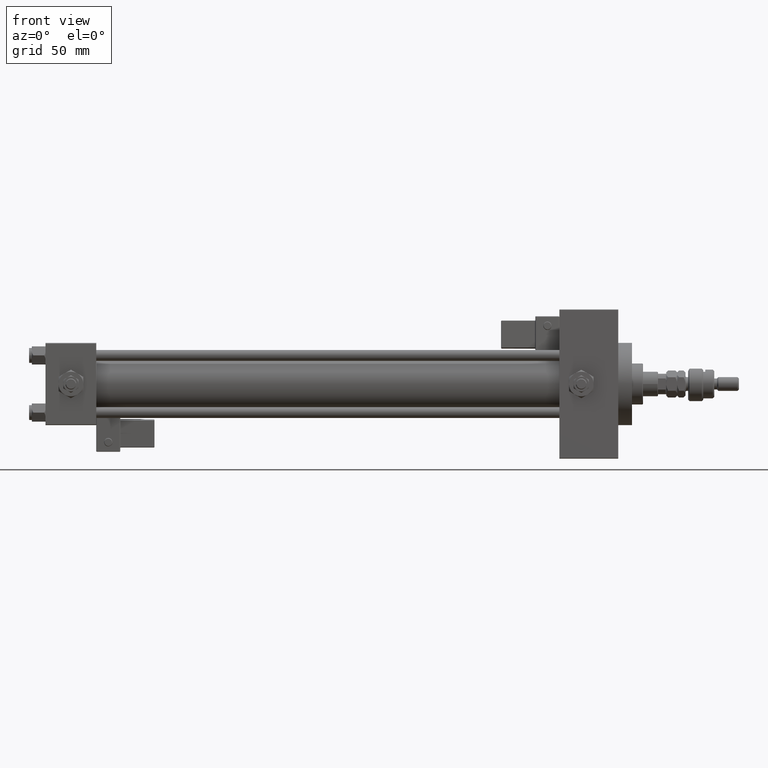
[diagram: clean part render]
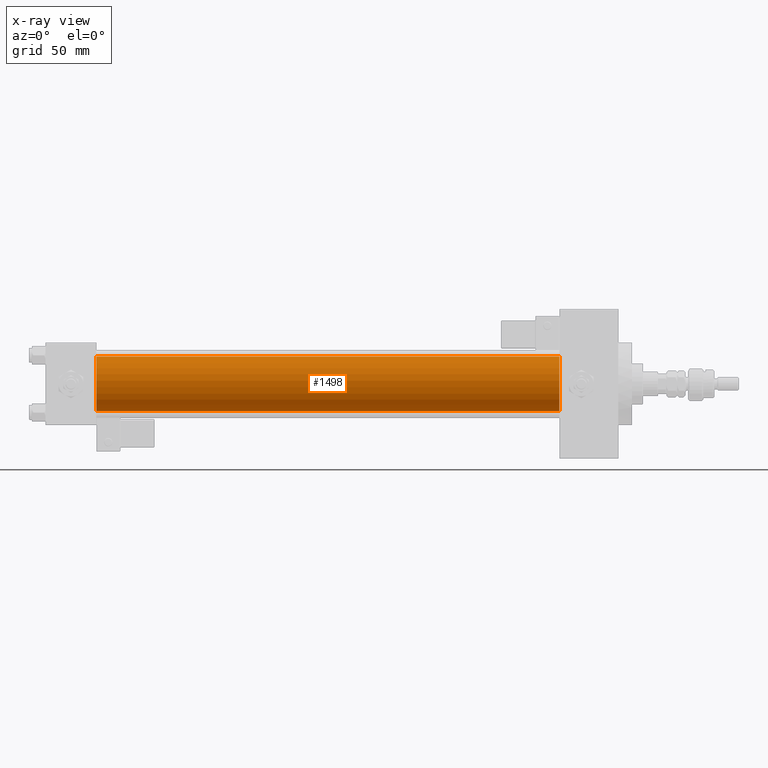
[diagram: x-ray — body ghosted, one internal face saturated and labeled with its STEP entity id]
A machine part, front view, then the same camera in x-ray: the body is ghosted and one INTERNAL B-rep face — a face not visible from any outside direction — is saturated and labeled: STEP entity #1498.
In plain terms, the highlighted cylindrical surface (edge-blend (fillet) strip) has radius 20 mm, axis along (-1, -0, -0).
Its self-contained STEP definition (entity closure, byte-faithful):
#1498 = ADVANCED_FACE ( 'NONE', ( #36795 ), #2782, .F. ) ;
#1669 = VERTEX_POINT ( 'NONE', #45980 ) ;
#2782 = CYLINDRICAL_SURFACE ( 'NONE', #52958, 20.00000000000000000 ) ;
#3643 = DIRECTION ( 'NONE',  ( 0.000000000000000000, 0.000000000000000000, -1.000000000000000000 ) ) ;
#5719 = CARTESIAN_POINT ( 'NONE',  ( 375.0000000000000000, -2.602085213965210642E-15, 20.00000000000000000 ) ) ;
#5741 = VERTEX_POINT ( 'NONE', #5719 ) ;
#6718 = ORIENTED_EDGE ( 'NONE', *, *, #42332, .F. ) ;
#7552 = EDGE_CURVE ( 'NONE', #1669, #17018, #28486, .T. ) ;
#7740 = CIRCLE ( 'NONE', #52433, 20.00000000000000000 ) ;
#9115 = EDGE_LOOP ( 'NONE', ( #48432, #15231, #6718, #11357 ) ) ;
#11297 = DIRECTION ( 'NONE',  ( -1.000000000000000000, -0.000000000000000000, -0.000000000000000000 ) ) ;
#11357 = ORIENTED_EDGE ( 'NONE', *, *, #48066, .F. ) ;
#12096 = DIRECTION ( 'NONE',  ( -1.000000000000000000, -0.000000000000000000, -0.000000000000000000 ) ) ;
#12102 = CARTESIAN_POINT ( 'NONE',  ( 375.0000000000000000, -2.602085213965210642E-15, 0.000000000000000000 ) ) ;
#12277 = CARTESIAN_POINT ( 'NONE',  ( 375.0000000000000000, -1.527916156705042519E-16, -20.00000000000000000 ) ) ;
#12925 = EDGE_CURVE ( 'NONE', #5741, #1669, #7740, .T. ) ;
#15231 = ORIENTED_EDGE ( 'NONE', *, *, #7552, .T. ) ;
#15524 = DIRECTION ( 'NONE',  ( 0.000000000000000000, 0.000000000000000000, -1.000000000000000000 ) ) ;
#17018 = VERTEX_POINT ( 'NONE', #30867 ) ;
#19638 = CARTESIAN_POINT ( 'NONE',  ( 37.00000000000000000, -2.602085213965210642E-15, 0.000000000000000000 ) ) ;
#21128 = VECTOR ( 'NONE', #12096, 1000.000000000000000 ) ;
#21984 = VERTEX_POINT ( 'NONE', #48036 ) ;
#24247 = DIRECTION ( 'NONE',  ( 1.000000000000000000, 0.000000000000000000, 0.000000000000000000 ) ) ;
#28486 = LINE ( 'NONE', #12277, #33816 ) ;
#30867 = CARTESIAN_POINT ( 'NONE',  ( 37.00000000000000000, -1.527916156705042519E-16, -20.00000000000000000 ) ) ;
#32941 = CARTESIAN_POINT ( 'NONE',  ( 375.0000000000000000, -2.602085213965210642E-15, 20.00000000000000000 ) ) ;
#33000 = CARTESIAN_POINT ( 'NONE',  ( 375.0000000000000000, -2.602085213965210642E-15, 0.000000000000000000 ) ) ;
#33816 = VECTOR ( 'NONE', #36962, 1000.000000000000000 ) ;
#36345 = DIRECTION ( 'NONE',  ( 1.000000000000000000, 0.000000000000000000, 0.000000000000000000 ) ) ;
#36795 = FACE_OUTER_BOUND ( 'NONE', #9115, .T. ) ;
#36962 = DIRECTION ( 'NONE',  ( -1.000000000000000000, -0.000000000000000000, -0.000000000000000000 ) ) ;
#38501 = AXIS2_PLACEMENT_3D ( 'NONE', #19638, #36345, #15524 ) ;
#42332 = EDGE_CURVE ( 'NONE', #21984, #17018, #48151, .T. ) ;
#44218 = DIRECTION ( 'NONE',  ( 0.000000000000000000, 0.000000000000000000, 1.000000000000000000 ) ) ;
#45980 = CARTESIAN_POINT ( 'NONE',  ( 375.0000000000000000, -1.527916156705042519E-16, -20.00000000000000000 ) ) ;
#48036 = CARTESIAN_POINT ( 'NONE',  ( 37.00000000000000000, -2.602085213965210642E-15, 20.00000000000000000 ) ) ;
#48066 = EDGE_CURVE ( 'NONE', #5741, #21984, #53813, .T. ) ;
#48151 = CIRCLE ( 'NONE', #38501, 20.00000000000000000 ) ;
#48432 = ORIENTED_EDGE ( 'NONE', *, *, #12925, .T. ) ;
#52433 = AXIS2_PLACEMENT_3D ( 'NONE', #33000, #24247, #3643 ) ;
#52958 = AXIS2_PLACEMENT_3D ( 'NONE', #12102, #11297, #44218 ) ;
#53813 = LINE ( 'NONE', #32941, #21128 ) ;